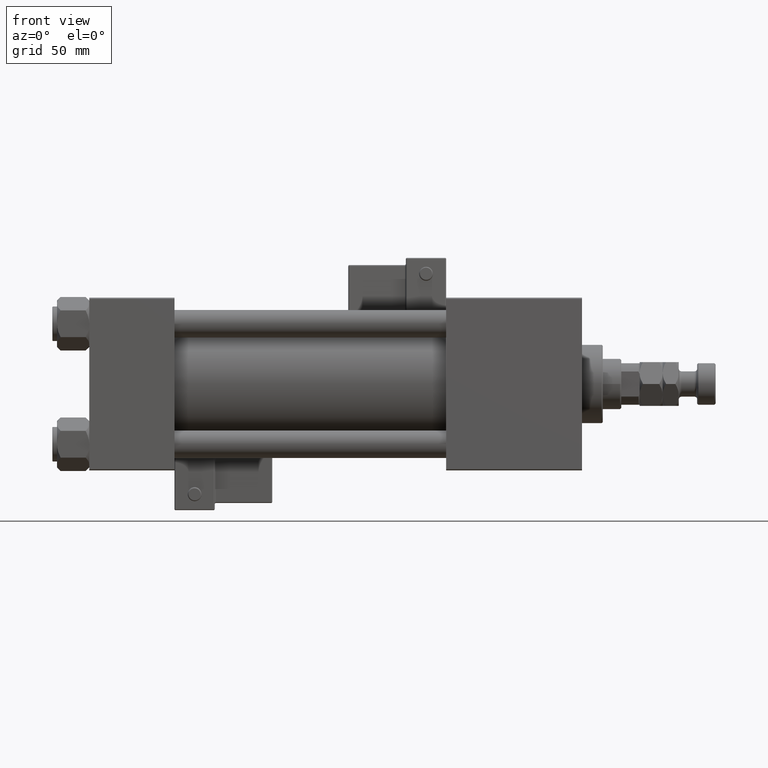
[diagram: clean part render]
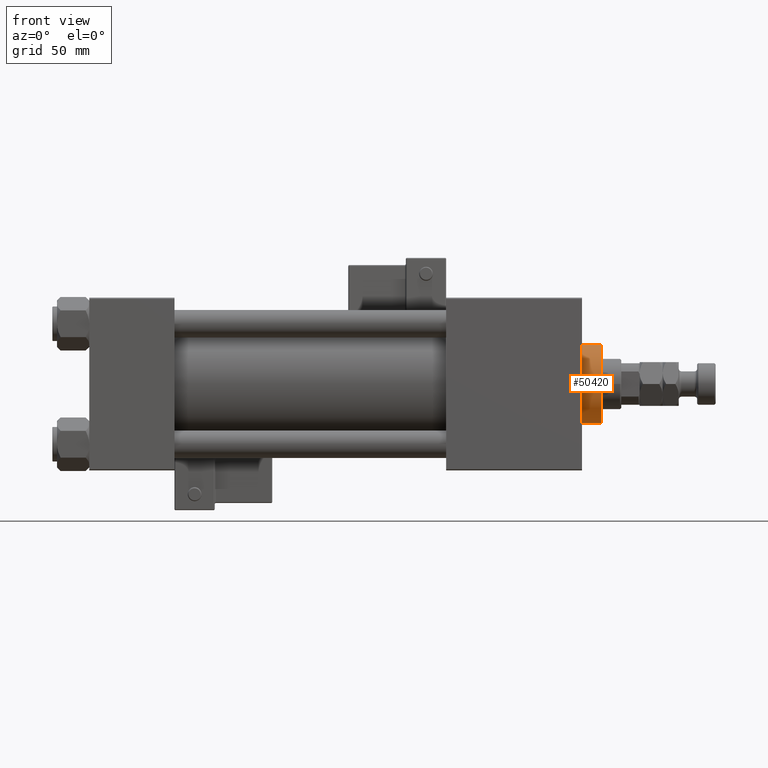
[diagram: same view with one face highlighted and labeled with its STEP entity id]
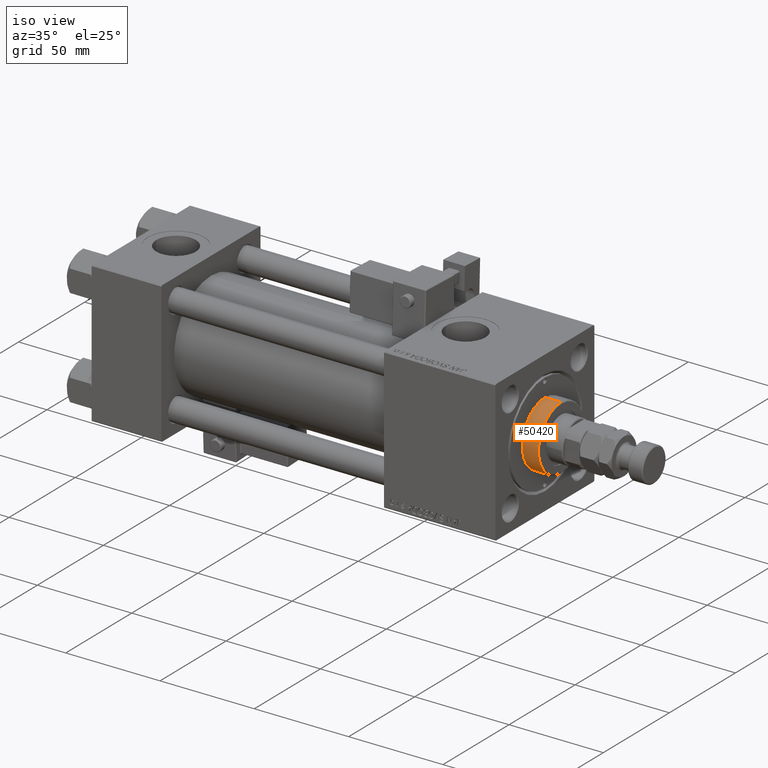
[diagram: same view with one face highlighted and labeled with its STEP entity id]
A machine part, front view. The second image highlights one B-rep face of the part: STEP entity #50420.
A second angle (iso view) of the same face is appended — the face is thin or edge-on in the first view.
In plain terms, the highlighted cylindrical surface (partial cylindrical patch) has radius 17 mm, axis along (-1, -0, -0).
Its self-contained STEP definition (entity closure, byte-faithful):
#548 = CIRCLE ( 'NONE', #31208, 17.00000000000000000 ) ;
#3104 = FACE_OUTER_BOUND ( 'NONE', #45830, .T. ) ;
#3234 = EDGE_CURVE ( 'NONE', #23980, #32837, #8734, .T. ) ;
#3607 = DIRECTION ( 'NONE',  ( 1.000000000000000000, 0.000000000000000000, 0.000000000000000000 ) ) ;
#4062 = DIRECTION ( 'NONE',  ( -0.000000000000000000, -0.000000000000000000, -1.000000000000000000 ) ) ;
#5064 = CARTESIAN_POINT ( 'NONE',  ( 17.00000000000000000, 2.081899558550500280E-15, 37.69999999999999574 ) ) ;
#6722 = ORIENTED_EDGE ( 'NONE', *, *, #16367, .T. ) ;
#8191 = CARTESIAN_POINT ( 'NONE',  ( 17.00000000000000000, 2.081899558550500280E-15, 37.19999999999999574 ) ) ;
#8734 = LINE ( 'NONE', #12313, #11418 ) ;
#11418 = VECTOR ( 'NONE', #4062, 1000.000000000000000 ) ;
#11804 = CARTESIAN_POINT ( 'NONE',  ( -17.00000000000000000, 0.000000000000000000, 37.19999999999999574 ) ) ;
#11847 = CARTESIAN_POINT ( 'NONE',  ( 0.000000000000000000, 0.000000000000000000, 28.69999999999999929 ) ) ;
#11896 = DIRECTION ( 'NONE',  ( -1.000000000000000000, 0.000000000000000000, 0.000000000000000000 ) ) ;
#12313 = CARTESIAN_POINT ( 'NONE',  ( -17.00000000000000000, 0.000000000000000000, 37.69999999999999574 ) ) ;
#13433 = ORIENTED_EDGE ( 'NONE', *, *, #3234, .T. ) ;
#15511 = VECTOR ( 'NONE', #21817, 1000.000000000000000 ) ;
#15737 = DIRECTION ( 'NONE',  ( -0.000000000000000000, -0.000000000000000000, -1.000000000000000000 ) ) ;
#16367 = EDGE_CURVE ( 'NONE', #32837, #53681, #548, .T. ) ;
#16664 = ORIENTED_EDGE ( 'NONE', *, *, #24099, .T. ) ;
#17776 = CIRCLE ( 'NONE', #24779, 17.00000000000000000 ) ;
#18368 = DIRECTION ( 'NONE',  ( 1.000000000000000000, 0.000000000000000000, 0.000000000000000000 ) ) ;
#20025 = CARTESIAN_POINT ( 'NONE',  ( 17.00000000000000000, 2.081899558550500280E-15, 28.69999999999999929 ) ) ;
#21817 = DIRECTION ( 'NONE',  ( -0.000000000000000000, -0.000000000000000000, -1.000000000000000000 ) ) ;
#22191 = CARTESIAN_POINT ( 'NONE',  ( -17.00000000000000000, 0.000000000000000000, 28.69999999999999929 ) ) ;
#22480 = DIRECTION ( 'NONE',  ( 0.000000000000000000, 0.000000000000000000, -1.000000000000000000 ) ) ;
#23980 = VERTEX_POINT ( 'NONE', #11804 ) ;
#24099 = EDGE_CURVE ( 'NONE', #26396, #23980, #17776, .T. ) ;
#24779 = AXIS2_PLACEMENT_3D ( 'NONE', #31236, #22480, #18368 ) ;
#26396 = VERTEX_POINT ( 'NONE', #8191 ) ;
#26464 = LINE ( 'NONE', #5064, #15511 ) ;
#27905 = ORIENTED_EDGE ( 'NONE', *, *, #37069, .F. ) ;
#31208 = AXIS2_PLACEMENT_3D ( 'NONE', #11847, #38142, #3607 ) ;
#31236 = CARTESIAN_POINT ( 'NONE',  ( 0.000000000000000000, 0.000000000000000000, 37.19999999999999574 ) ) ;
#32837 = VERTEX_POINT ( 'NONE', #22191 ) ;
#35719 = AXIS2_PLACEMENT_3D ( 'NONE', #48896, #15737, #11896 ) ;
#37069 = EDGE_CURVE ( 'NONE', #26396, #53681, #26464, .T. ) ;
#38142 = DIRECTION ( 'NONE',  ( 0.000000000000000000, 0.000000000000000000, 1.000000000000000000 ) ) ;
#45830 = EDGE_LOOP ( 'NONE', ( #27905, #16664, #13433, #6722 ) ) ;
#48896 = CARTESIAN_POINT ( 'NONE',  ( 0.000000000000000000, 0.000000000000000000, 37.69999999999999574 ) ) ;
#50420 = ADVANCED_FACE ( 'NONE', ( #3104 ), #53275, .T. ) ;
#53275 = CYLINDRICAL_SURFACE ( 'NONE', #35719, 17.00000000000000000 ) ;
#53681 = VERTEX_POINT ( 'NONE', #20025 ) ;